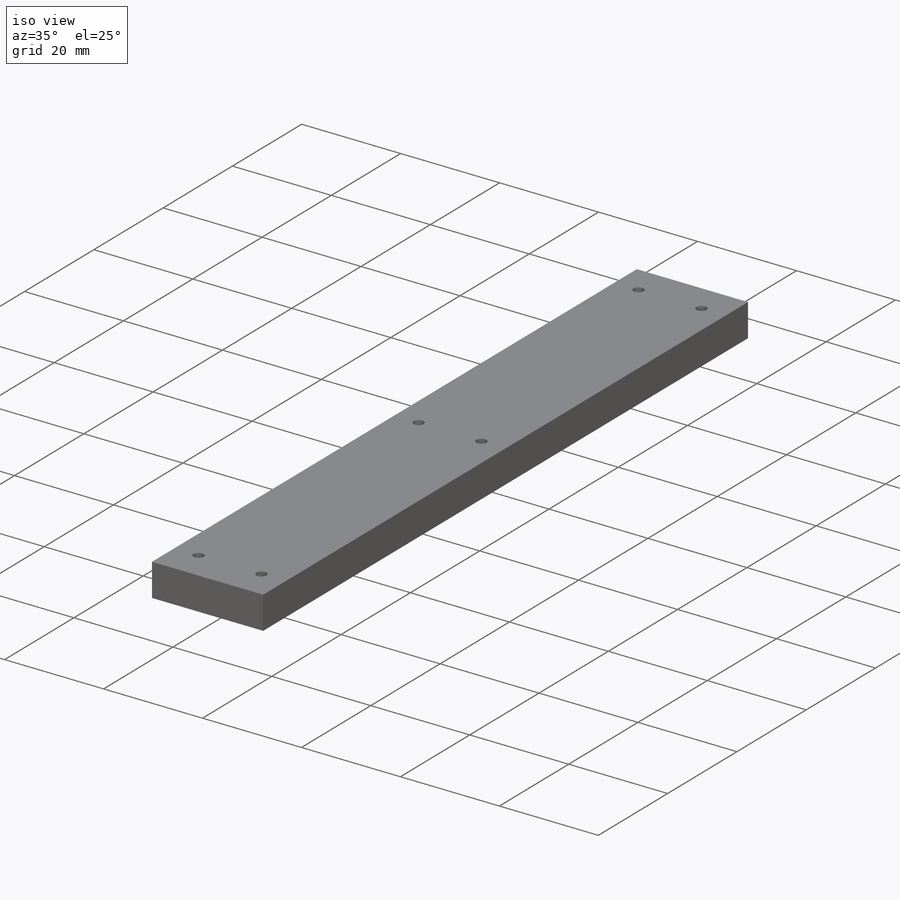
[diagram: iso view]
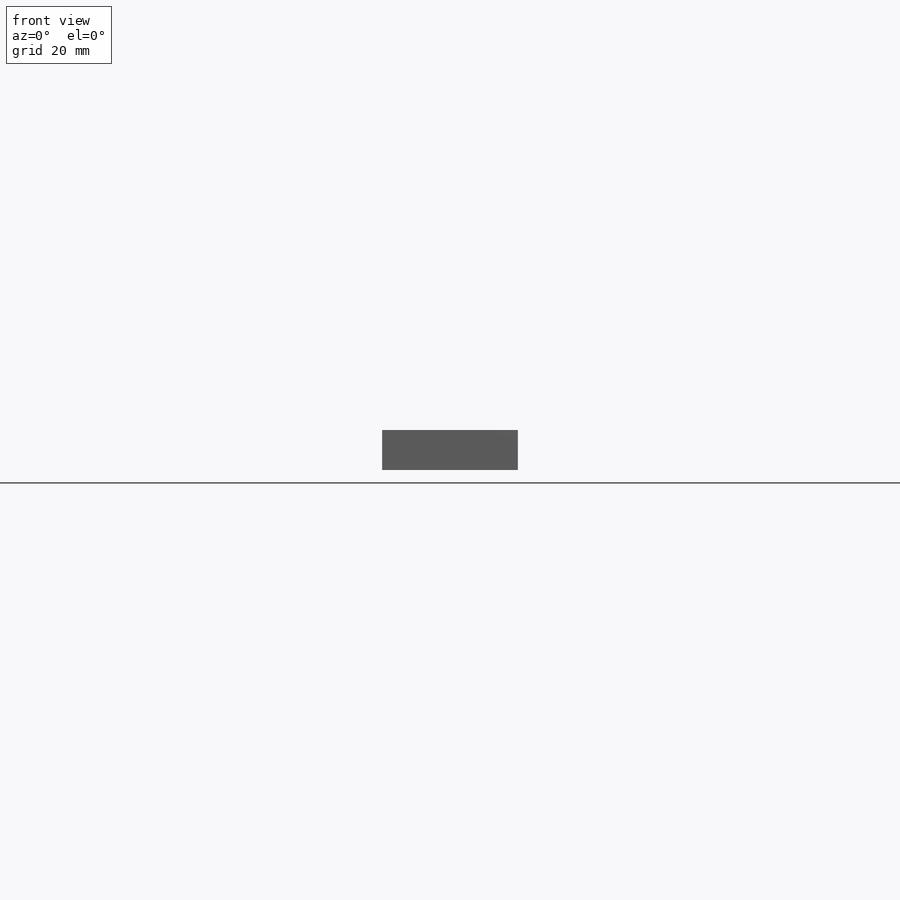
[diagram: front view]
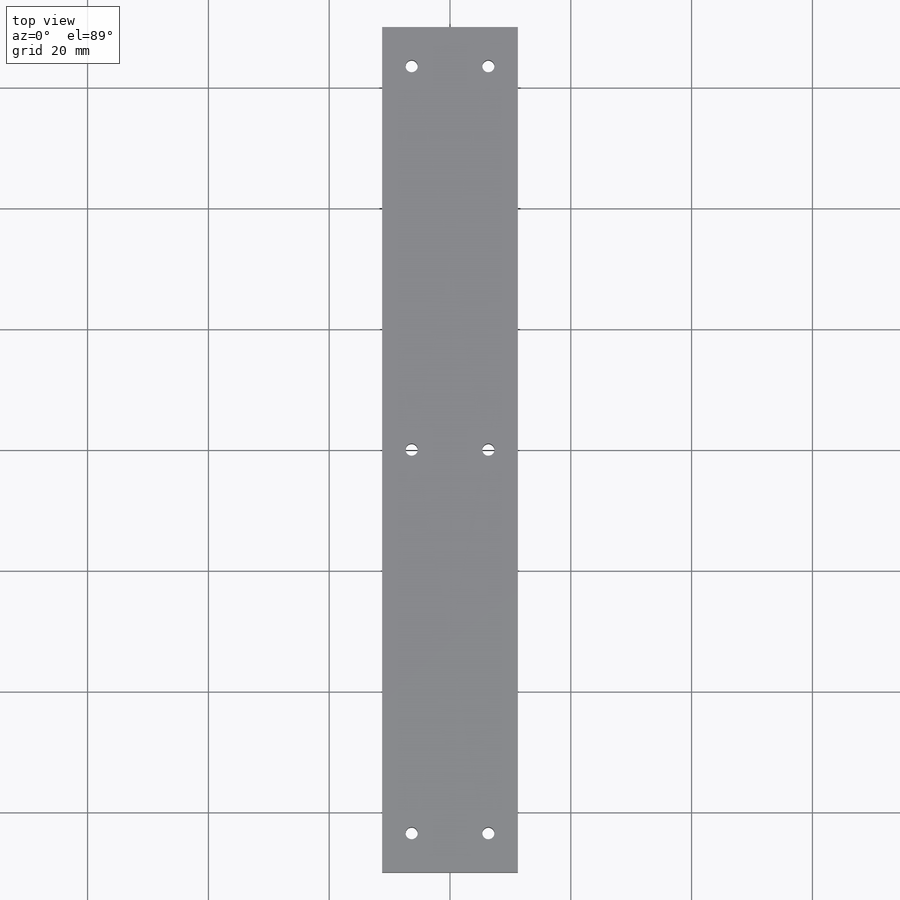
[diagram: top view]
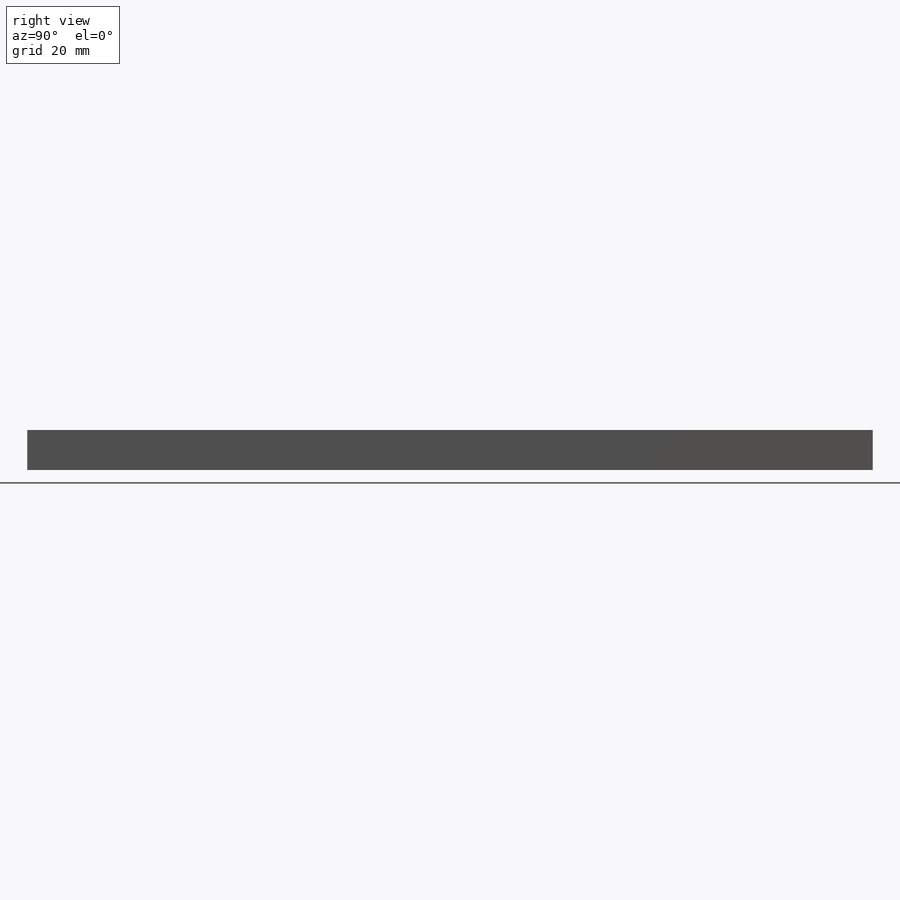
[diagram: right view]
SOLIDWORKS PART (.sldprt)
format: sldprt  version: not decoded by parser v0  size: 260,096 bytes
history: native  units: mm
features: sketch x3, material x1, extrude x1, hole x1 (+12 scaffold rows collapsed)
feature tree (18):
  scaffold x12  (default folders/planes/origin — collapsed)
  material  "Acrylic (BLUE)"
  sketch  "Sketch1"  dims[D1=139.7mm D2=22.225mm]
  extrude  "Boss-Extrude1"  Depth=6.604mm
  hole  "#4-40 Tapped Hole1"  Diameter=2.2606mm Depth=7.5946mm
  sketch  "Sketch3"  dims[c1.D1=12.7mm c1.D2=63.5mm c2.D1=12.7mm]
  sketch  "Sketch4"  dims[hole-wizard template sketch: 50 standard entries collapsed; hole parameters kept: c15.D1=0.127mm]
decode coverage: 5 of 5 modeling features carry decoded parameters
note: ~ marks probable driven/reference dimensions
note: suppression state not decoded; provenance and decode notes live in map.json
